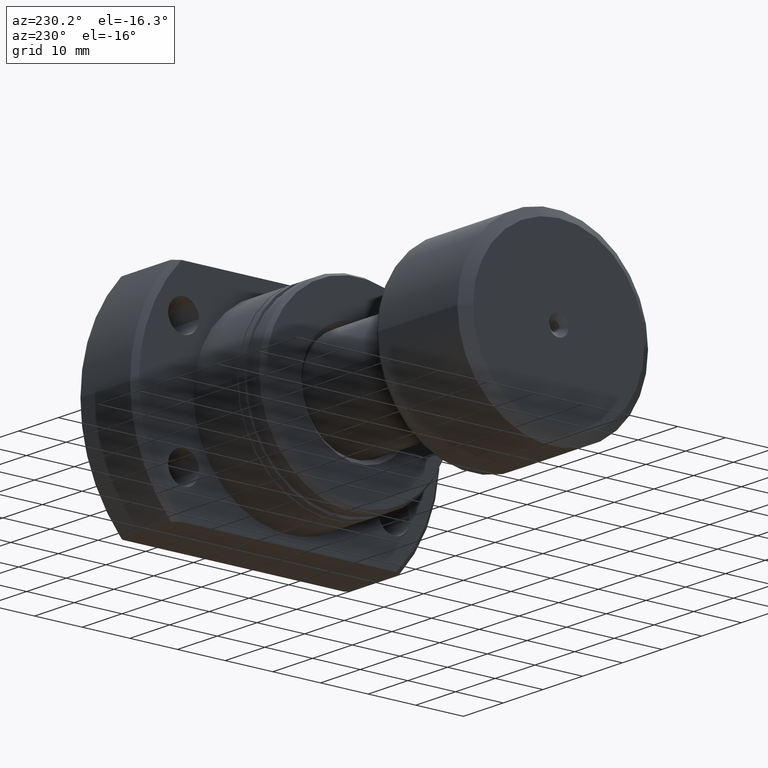
[diagram: clean part render]
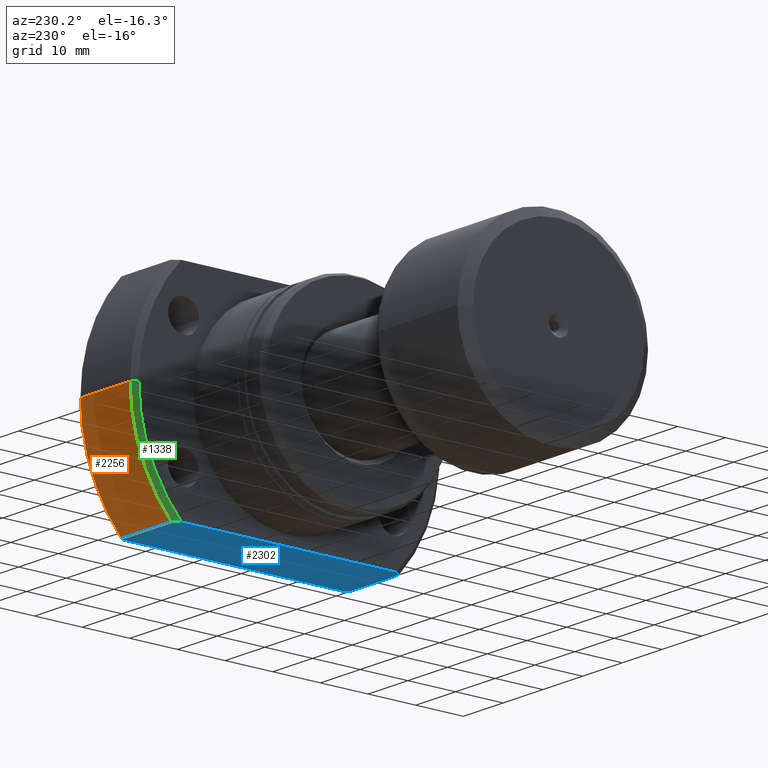
[diagram: same view with three faces highlighted in distinct colors, each labeled with its STEP entity id]
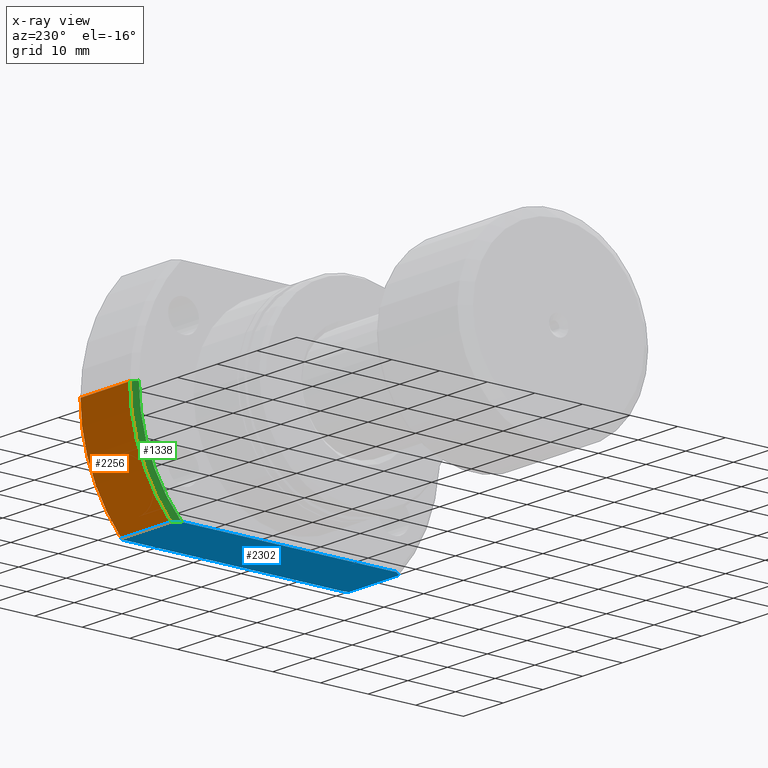
[diagram: x-ray of the same camera — body ghosted, the three highlighted faces saturated]
A machine part, auxiliary view with three faces highlighted in distinct colors.
The next image is the same camera in x-ray (body ghosted, the three faces saturated) — at least one of them is partly hidden behind the body in this view.
Their STEP definitions:

[orange] entity #2256 — the highlighted cylindrical surface (partial cylindrical patch) has radius 32.5 mm, axis along (1, 0, 0).
#16 = CARTESIAN_POINT ( 'NONE',  ( 31.00000000000008171, 32.49999999999990763, 0.000000000000000000 ) ) ;
#174 = DIRECTION ( 'NONE',  ( 1.000000000000000000, 2.721437331438560389E-17, -0.000000000000000000 ) ) ;
#227 = DIRECTION ( 'NONE',  ( 1.000000000000000000, 2.721437331438560389E-17, -0.000000000000000000 ) ) ;
#257 = EDGE_CURVE ( 'NONE', #641, #832, #989, .T. ) ;
#378 = CYLINDRICAL_SURFACE ( 'NONE', #2195, 32.49999999999990763 ) ;
#426 = LINE ( 'NONE', #1138, #1861 ) ;
#464 = EDGE_CURVE ( 'NONE', #1761, #832, #1898, .T. ) ;
#619 = DIRECTION ( 'NONE',  ( 1.000000000000000000, 2.721437331438560389E-17, -0.000000000000000000 ) ) ;
#641 = VERTEX_POINT ( 'NONE', #2682 ) ;
#832 = VERTEX_POINT ( 'NONE', #16 ) ;
#937 = EDGE_CURVE ( 'NONE', #1105, #641, #426, .T. ) ;
#989 = CIRCLE ( 'NONE', #1296, 32.49999999999990763 ) ;
#1105 = VERTEX_POINT ( 'NONE', #2465 ) ;
#1138 = CARTESIAN_POINT ( 'NONE',  ( -2.498001805406602216E-13, 23.92174742781216423, -21.99999999999998934 ) ) ;
#1191 = EDGE_LOOP ( 'NONE', ( #2974, #1457, #2202, #2232 ) ) ;
#1296 = AXIS2_PLACEMENT_3D ( 'NONE', #2486, #227, #2038 ) ;
#1367 = CARTESIAN_POINT ( 'NONE',  ( 31.50000000000000000, 8.572527594031465301E-16, 0.000000000000000000 ) ) ;
#1457 = ORIENTED_EDGE ( 'NONE', *, *, #464, .T. ) ;
#1510 = AXIS2_PLACEMENT_3D ( 'NONE', #2849, #619, #1606 ) ;
#1606 = DIRECTION ( 'NONE',  ( 0.000000000000000000, 1.000000000000000000, 0.000000000000000000 ) ) ;
#1761 = VERTEX_POINT ( 'NONE', #2395 ) ;
#1861 = VECTOR ( 'NONE', #1940, 1000.000000000000000 ) ;
#1898 = LINE ( 'NONE', #1934, #2026 ) ;
#1934 = CARTESIAN_POINT ( 'NONE',  ( 31.50000000000000000, 32.49999999999990763, 0.000000000000000000 ) ) ;
#1940 = DIRECTION ( 'NONE',  ( 1.000000000000000000, -2.886466111666351885E-14, -0.000000000000000000 ) ) ;
#2026 = VECTOR ( 'NONE', #174, 1000.000000000000000 ) ;
#2038 = DIRECTION ( 'NONE',  ( 0.000000000000000000, 1.000000000000000000, 0.000000000000000000 ) ) ;
#2195 = AXIS2_PLACEMENT_3D ( 'NONE', #1367, #2357, #2981 ) ;
#2202 = ORIENTED_EDGE ( 'NONE', *, *, #257, .F. ) ;
#2232 = ORIENTED_EDGE ( 'NONE', *, *, #937, .F. ) ;
#2248 = EDGE_CURVE ( 'NONE', #1105, #1761, #2918, .T. ) ;
#2256 = ADVANCED_FACE ( 'NONE', ( #2602 ), #378, .T. ) ;
#2357 = DIRECTION ( 'NONE',  ( 1.000000000000000000, 2.721437331438560389E-17, -0.000000000000000000 ) ) ;
#2395 = CARTESIAN_POINT ( 'NONE',  ( 18.49999999999998934, 32.49999999999990763, 0.000000000000000000 ) ) ;
#2465 = CARTESIAN_POINT ( 'NONE',  ( 18.49999999999998934, 23.92174742781163133, -21.99999999999998934 ) ) ;
#2486 = CARTESIAN_POINT ( 'NONE',  ( 31.00000000000008171, 8.436455727459560039E-16, 0.000000000000000000 ) ) ;
#2602 = FACE_OUTER_BOUND ( 'NONE', #1191, .T. ) ;
#2682 = CARTESIAN_POINT ( 'NONE',  ( 31.00000000000007461, 23.92174742781126895, -21.99999999999998934 ) ) ;
#2849 = CARTESIAN_POINT ( 'NONE',  ( 18.49999999999998934, 5.034659063161333869E-16, 0.000000000000000000 ) ) ;
#2918 = CIRCLE ( 'NONE', #1510, 32.49999999999990763 ) ;
#2974 = ORIENTED_EDGE ( 'NONE', *, *, #2248, .T. ) ;
#2981 = DIRECTION ( 'NONE',  ( 0.000000000000000000, 1.000000000000000000, 0.000000000000000000 ) ) ;

[blue] entity #2302 — the highlighted planar face has unit normal (0, 0, 1).
#15 = DIRECTION ( 'NONE',  ( 1.000000000000000000, 0.000000000000000000, -0.000000000000000000 ) ) ;
#104 = CARTESIAN_POINT ( 'NONE',  ( 17.82998096711740033, -23.00546414414808183, -22.00000000000000355 ) ) ;
#135 = CARTESIAN_POINT ( 'NONE',  ( 31.33407032320117125, -23.46639532164749298, -22.00000000000000355 ) ) ;
#296 = LINE ( 'NONE', #2279, #2927 ) ;
#299 = VERTEX_POINT ( 'NONE', #551 ) ;
#365 = CARTESIAN_POINT ( 'NONE',  ( 17.50000000000000355, 22.54440063519089676, -22.00000000000000355 ) ) ;
#397 = ORIENTED_EDGE ( 'NONE', *, *, #1290, .F. ) ;
#412 = CARTESIAN_POINT ( 'NONE',  ( 17.83023180395318263, 23.00581462409452982, -22.00000000000000355 ) ) ;
#426 = LINE ( 'NONE', #1138, #1861 ) ;
#481 = CARTESIAN_POINT ( 'NONE',  ( 31.50000000000000000, 23.23790007724450035, -22.00000000000000355 ) ) ;
#551 = CARTESIAN_POINT ( 'NONE',  ( 31.00000000000007461, -23.92174742781125829, -22.00000000000000355 ) ) ;
#630 = CARTESIAN_POINT ( 'NONE',  ( 31.16738888422669262, -23.69433349186106597, -22.00000000000000355 ) ) ;
#633 = EDGE_CURVE ( 'NONE', #2355, #2735, #2932, .T. ) ;
#641 = VERTEX_POINT ( 'NONE', #2682 ) ;
#663 = CARTESIAN_POINT ( 'NONE',  ( 31.50000000000000000, -23.23790007724450035, -22.00000000000000355 ) ) ;
#704 = B_SPLINE_CURVE_WITH_KNOTS ( 'NONE', 3,
 ( #3209, #995, #412, #1670 ),
 .UNSPECIFIED., .F., .F.,
 ( 4, 4 ),
 ( 0.03779752499755586331, 0.03950166028446448763 ),
 .UNSPECIFIED. ) ;
#872 = CARTESIAN_POINT ( 'NONE',  ( -1.637578961322105897E-12, -23.92174742781036301, -22.00000000000000355 ) ) ;
#937 = EDGE_CURVE ( 'NONE', #1105, #641, #426, .T. ) ;
#995 = CARTESIAN_POINT ( 'NONE',  ( 18.16368991444090497, 23.46483775540317041, -22.00000000000000355 ) ) ;
#1010 = DIRECTION ( 'NONE',  ( 0.000000000000000000, 0.000000000000000000, 1.000000000000000000 ) ) ;
#1098 = EDGE_CURVE ( 'NONE', #1105, #1788, #704, .T. ) ;
#1105 = VERTEX_POINT ( 'NONE', #2465 ) ;
#1138 = CARTESIAN_POINT ( 'NONE',  ( -2.498001805406602216E-13, 23.92174742781216423, -21.99999999999998934 ) ) ;
#1209 = CARTESIAN_POINT ( 'NONE',  ( 31.50000000000000000, 23.23790007724450035, -22.00000000000000355 ) ) ;
#1239 = DIRECTION ( 'NONE',  ( 2.721437331438560389E-17, -1.000000000000000000, 0.000000000000000000 ) ) ;
#1250 = B_SPLINE_CURVE_WITH_KNOTS ( 'NONE', 3,
 ( #2911, #630, #135, #663 ),
 .UNSPECIFIED., .F., .F.,
 ( 4, 4 ),
 ( 0.03779112510166918876, 0.03863931077161771033 ),
 .UNSPECIFIED. ) ;
#1279 = ORIENTED_EDGE ( 'NONE', *, *, #2443, .F. ) ;
#1289 = ORIENTED_EDGE ( 'NONE', *, *, #1098, .F. ) ;
#1290 = EDGE_CURVE ( 'NONE', #299, #2355, #1250, .T. ) ;
#1362 = ORIENTED_EDGE ( 'NONE', *, *, #2553, .F. ) ;
#1428 = CARTESIAN_POINT ( 'NONE',  ( 17.50000000000001776, -22.54440063519093940, -22.00000000000000355 ) ) ;
#1570 = CARTESIAN_POINT ( 'NONE',  ( 17.50000000000001776, -22.54440063519093940, -22.00000000000000355 ) ) ;
#1670 = CARTESIAN_POINT ( 'NONE',  ( 17.50000000000000355, 22.54440063519089676, -22.00000000000000355 ) ) ;
#1675 = EDGE_CURVE ( 'NONE', #2167, #299, #3096, .T. ) ;
#1680 = CARTESIAN_POINT ( 'NONE',  ( 31.50000000000000000, -32.00000000000000000, -22.00000000000000355 ) ) ;
#1715 = FACE_OUTER_BOUND ( 'NONE', #2014, .T. ) ;
#1721 = ORIENTED_EDGE ( 'NONE', *, *, #633, .F. ) ;
#1734 = ORIENTED_EDGE ( 'NONE', *, *, #1675, .F. ) ;
#1788 = VERTEX_POINT ( 'NONE', #365 ) ;
#1790 = B_SPLINE_CURVE_WITH_KNOTS ( 'NONE', 3,
 ( #1570, #104, #2593, #2322 ),
 .UNSPECIFIED., .F., .F.,
 ( 4, 4 ),
 ( 0.08934887722955515976, 0.09106053602301780736 ),
 .UNSPECIFIED. ) ;
#1861 = VECTOR ( 'NONE', #1940, 1000.000000000000000 ) ;
#1940 = DIRECTION ( 'NONE',  ( 1.000000000000000000, -2.886466111666351885E-14, -0.000000000000000000 ) ) ;
#2014 = EDGE_LOOP ( 'NONE', ( #3191, #1362, #1721, #397, #1734, #1279, #2151, #1289 ) ) ;
#2151 = ORIENTED_EDGE ( 'NONE', *, *, #2354, .F. ) ;
#2160 = CARTESIAN_POINT ( 'NONE',  ( 31.00000000000007461, 23.92174742781126895, -21.99999999999998934 ) ) ;
#2167 = VERTEX_POINT ( 'NONE', #2833 ) ;
#2192 = CARTESIAN_POINT ( 'NONE',  ( 31.16744843440999091, 23.69425258719626370, -22.00000000000000355 ) ) ;
#2209 = CARTESIAN_POINT ( 'NONE',  ( 31.50000000000000000, -23.23790007724450035, -22.00000000000000355 ) ) ;
#2228 = B_SPLINE_CURVE_WITH_KNOTS ( 'NONE', 3,
 ( #1209, #2419, #2192, #2160 ),
 .UNSPECIFIED., .F., .F.,
 ( 4, 4 ),
 ( 0.09020251661949948985, 0.09105413011805403578 ),
 .UNSPECIFIED. ) ;
#2279 = CARTESIAN_POINT ( 'NONE',  ( 17.50000000000000000, -19.99999999999999645, -22.00000000000000355 ) ) ;
#2302 = ADVANCED_FACE ( 'NONE', ( #1715 ), #2460, .F. ) ;
#2322 = CARTESIAN_POINT ( 'NONE',  ( 18.49999999999998934, -23.92174742781089947, -22.00000000000000355 ) ) ;
#2354 = EDGE_CURVE ( 'NONE', #1788, #2653, #296, .T. ) ;
#2355 = VERTEX_POINT ( 'NONE', #2209 ) ;
#2419 = CARTESIAN_POINT ( 'NONE',  ( 31.33413051841647246, 23.46631242917946381, -22.00000000000000355 ) ) ;
#2443 = EDGE_CURVE ( 'NONE', #2653, #2167, #1790, .T. ) ;
#2460 = PLANE ( 'NONE',  #2505 ) ;
#2465 = CARTESIAN_POINT ( 'NONE',  ( 18.49999999999998934, 23.92174742781163133, -21.99999999999998934 ) ) ;
#2505 = AXIS2_PLACEMENT_3D ( 'NONE', #2703, #1010, #15 ) ;
#2553 = EDGE_CURVE ( 'NONE', #2735, #641, #2228, .T. ) ;
#2593 = CARTESIAN_POINT ( 'NONE',  ( 18.16344437228347886, -23.46450416271138906, -22.00000000000000355 ) ) ;
#2653 = VERTEX_POINT ( 'NONE', #1428 ) ;
#2682 = CARTESIAN_POINT ( 'NONE',  ( 31.00000000000007461, 23.92174742781126895, -21.99999999999998934 ) ) ;
#2703 = CARTESIAN_POINT ( 'NONE',  ( -2.498001805406602216E-13, 23.92174742781217489, -22.00000000000000355 ) ) ;
#2730 = DIRECTION ( 'NONE',  ( -2.721437331438560389E-17, 1.000000000000000000, -0.000000000000000000 ) ) ;
#2735 = VERTEX_POINT ( 'NONE', #481 ) ;
#2812 = VECTOR ( 'NONE', #2906, 1000.000000000000000 ) ;
#2833 = CARTESIAN_POINT ( 'NONE',  ( 18.49999999999998934, -23.92174742781089947, -22.00000000000000355 ) ) ;
#2848 = VECTOR ( 'NONE', #2730, 1000.000000000000000 ) ;
#2906 = DIRECTION ( 'NONE',  ( 1.000000000000000000, -2.886466111666351885E-14, -0.000000000000000000 ) ) ;
#2911 = CARTESIAN_POINT ( 'NONE',  ( 31.00000000000007461, -23.92174742781125829, -22.00000000000000355 ) ) ;
#2927 = VECTOR ( 'NONE', #1239, 1000.000000000000000 ) ;
#2932 = LINE ( 'NONE', #1680, #2848 ) ;
#3096 = LINE ( 'NONE', #872, #2812 ) ;
#3191 = ORIENTED_EDGE ( 'NONE', *, *, #937, .T. ) ;
#3209 = CARTESIAN_POINT ( 'NONE',  ( 18.49999999999998934, 23.92174742781163133, -21.99999999999998934 ) ) ;

[green] entity #1338 — the highlighted conical surface has half-angle 45 deg.
#9 = AXIS2_PLACEMENT_3D ( 'NONE', #245, #1024, #2720 ) ;
#32 = ORIENTED_EDGE ( 'NONE', *, *, #2320, .T. ) ;
#35 = CARTESIAN_POINT ( 'NONE',  ( 17.50000000000000355, 31.49999999999993250, 0.000000000000000000 ) ) ;
#49 = CONICAL_SURFACE ( 'NONE', #2382, 31.49999999999993250, 0.7853981633974466137 ) ;
#152 = CARTESIAN_POINT ( 'NONE',  ( 17.50000000000000355, 31.49999999999993250, 0.000000000000000000 ) ) ;
#245 = CARTESIAN_POINT ( 'NONE',  ( 17.50000000000000355, 4.762515330017481928E-16, 0.000000000000000000 ) ) ;
#365 = CARTESIAN_POINT ( 'NONE',  ( 17.50000000000000355, 22.54440063519089676, -22.00000000000000355 ) ) ;
#412 = CARTESIAN_POINT ( 'NONE',  ( 17.83023180395318263, 23.00581462409452982, -22.00000000000000355 ) ) ;
#417 = FACE_OUTER_BOUND ( 'NONE', #724, .T. ) ;
#556 = DIRECTION ( 'NONE',  ( 0.7071067811865487940, 0.7071067811865463515, 0.000000000000000000 ) ) ;
#619 = DIRECTION ( 'NONE',  ( 1.000000000000000000, 2.721437331438560389E-17, -0.000000000000000000 ) ) ;
#704 = B_SPLINE_CURVE_WITH_KNOTS ( 'NONE', 3,
 ( #3209, #995, #412, #1670 ),
 .UNSPECIFIED., .F., .F.,
 ( 4, 4 ),
 ( 0.03779752499755586331, 0.03950166028446448763 ),
 .UNSPECIFIED. ) ;
#724 = EDGE_LOOP ( 'NONE', ( #32, #1441, #912, #2874 ) ) ;
#912 = ORIENTED_EDGE ( 'NONE', *, *, #2248, .F. ) ;
#995 = CARTESIAN_POINT ( 'NONE',  ( 18.16368991444090497, 23.46483775540317041, -22.00000000000000355 ) ) ;
#1024 = DIRECTION ( 'NONE',  ( 1.000000000000000000, 2.721437331438560389E-17, -0.000000000000000000 ) ) ;
#1098 = EDGE_CURVE ( 'NONE', #1105, #1788, #704, .T. ) ;
#1105 = VERTEX_POINT ( 'NONE', #2465 ) ;
#1338 = ADVANCED_FACE ( 'NONE', ( #417 ), #49, .T. ) ;
#1441 = ORIENTED_EDGE ( 'NONE', *, *, #1984, .T. ) ;
#1510 = AXIS2_PLACEMENT_3D ( 'NONE', #2849, #619, #1606 ) ;
#1573 = LINE ( 'NONE', #35, #2445 ) ;
#1606 = DIRECTION ( 'NONE',  ( 0.000000000000000000, 1.000000000000000000, 0.000000000000000000 ) ) ;
#1670 = CARTESIAN_POINT ( 'NONE',  ( 17.50000000000000355, 22.54440063519089676, -22.00000000000000355 ) ) ;
#1761 = VERTEX_POINT ( 'NONE', #2395 ) ;
#1788 = VERTEX_POINT ( 'NONE', #365 ) ;
#1880 = DIRECTION ( 'NONE',  ( 1.000000000000000000, 2.721437331438560389E-17, -0.000000000000000000 ) ) ;
#1984 = EDGE_CURVE ( 'NONE', #3102, #1761, #1573, .T. ) ;
#2248 = EDGE_CURVE ( 'NONE', #1105, #1761, #2918, .T. ) ;
#2320 = EDGE_CURVE ( 'NONE', #1788, #3102, #3179, .T. ) ;
#2382 = AXIS2_PLACEMENT_3D ( 'NONE', #2591, #1880, #2928 ) ;
#2395 = CARTESIAN_POINT ( 'NONE',  ( 18.49999999999998934, 32.49999999999990763, 0.000000000000000000 ) ) ;
#2445 = VECTOR ( 'NONE', #556, 1000.000000000000000 ) ;
#2465 = CARTESIAN_POINT ( 'NONE',  ( 18.49999999999998934, 23.92174742781163133, -21.99999999999998934 ) ) ;
#2591 = CARTESIAN_POINT ( 'NONE',  ( 17.50000000000000355, 4.762515330017481928E-16, 0.000000000000000000 ) ) ;
#2720 = DIRECTION ( 'NONE',  ( 0.000000000000000000, 1.000000000000000000, 0.000000000000000000 ) ) ;
#2849 = CARTESIAN_POINT ( 'NONE',  ( 18.49999999999998934, 5.034659063161333869E-16, 0.000000000000000000 ) ) ;
#2874 = ORIENTED_EDGE ( 'NONE', *, *, #1098, .T. ) ;
#2918 = CIRCLE ( 'NONE', #1510, 32.49999999999990763 ) ;
#2928 = DIRECTION ( 'NONE',  ( 0.000000000000000000, 1.000000000000000000, 0.000000000000000000 ) ) ;
#3102 = VERTEX_POINT ( 'NONE', #152 ) ;
#3179 = CIRCLE ( 'NONE', #9, 31.49999999999993250 ) ;
#3209 = CARTESIAN_POINT ( 'NONE',  ( 18.49999999999998934, 23.92174742781163133, -21.99999999999998934 ) ) ;